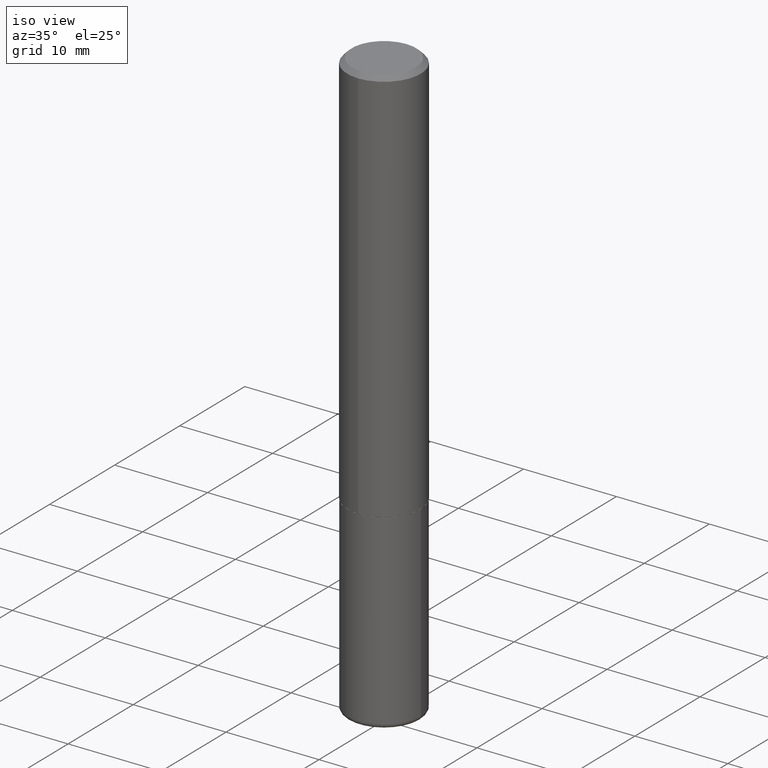
[diagram: clean part render]
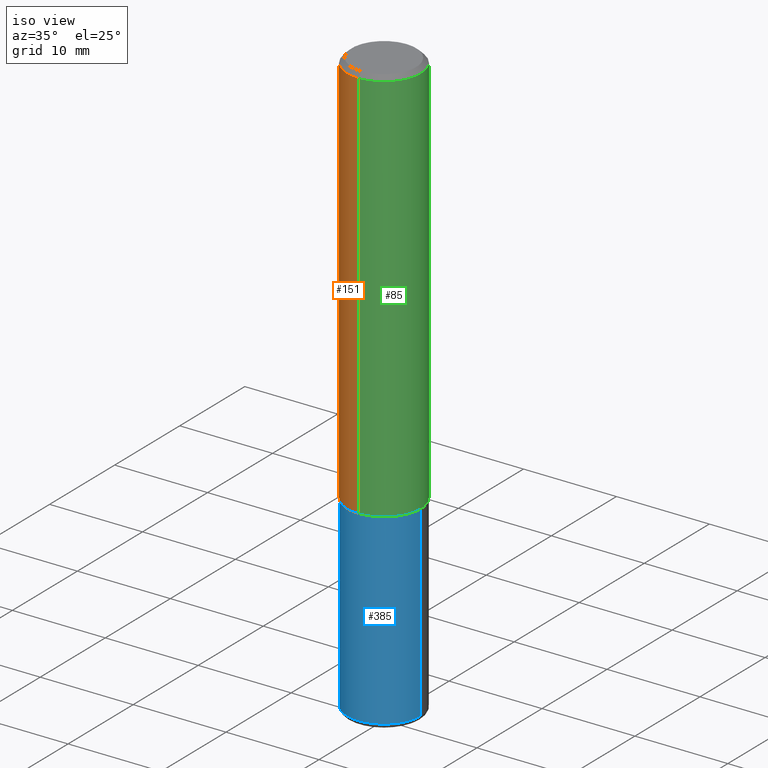
[diagram: same view with three faces highlighted in distinct colors, each labeled with its STEP entity id]
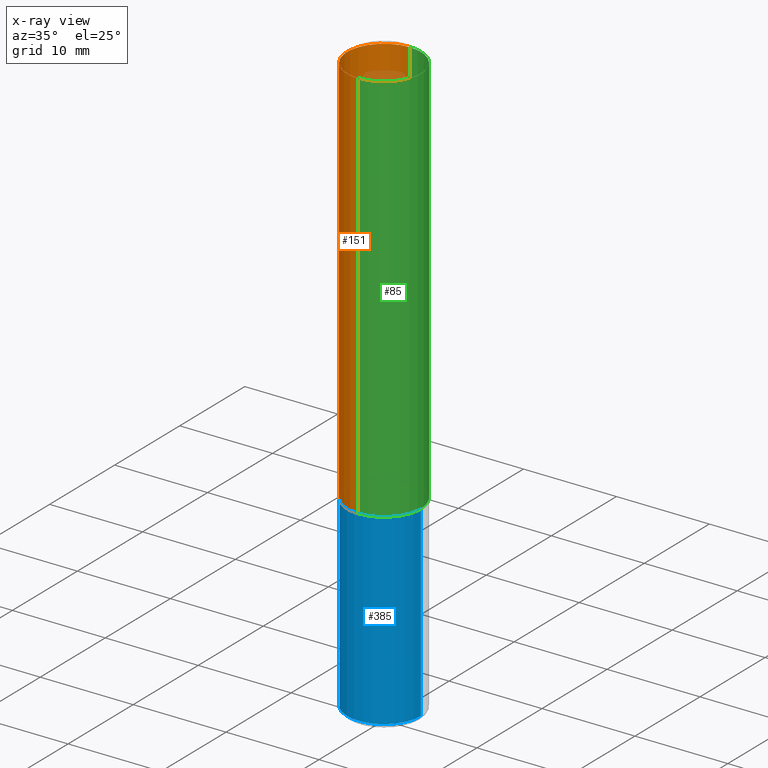
[diagram: x-ray of the same camera — body ghosted, the three highlighted faces saturated]
A machine part, iso view with three faces highlighted in distinct colors.
The next image is the same camera in x-ray (body ghosted, the three faces saturated) — at least one of them is partly hidden behind the body in this view.
Their STEP definitions:

[orange] entity #151 — the highlighted cylindrical surface (partial cylindrical patch) has radius 3.9688 mm, axis along (-0, 0, 1).
#13 = DIRECTION ( 'NONE',  ( -2.445245379879280031E-29, 3.491801298029767650E-15, 1.000000000000000000 ) ) ;
#14 = VERTEX_POINT ( 'NONE', #233 ) ;
#15 = EDGE_CURVE ( 'NONE', #205, #14, #387, .T. ) ;
#40 = CYLINDRICAL_SURFACE ( 'NONE', #208, 0.1562500000000001388 ) ;
#41 = CARTESIAN_POINT ( 'NONE',  ( -1.071952812151801412E-15, -0.1562500000000001110, -0.01999999999999948694 ) ) ;
#42 = EDGE_CURVE ( 'NONE', #14, #221, #47, .T. ) ;
#47 = CIRCLE ( 'NONE', #289, 0.1562500000000000278 ) ;
#53 = AXIS2_PLACEMENT_3D ( 'NONE', #180, #116, #324 ) ;
#57 = CARTESIAN_POINT ( 'NONE',  ( 1.110223024625178431E-15, 0.1562499999999943379, -1.686000000000000831 ) ) ;
#93 = CARTESIAN_POINT ( 'NONE',  ( -1.091087918388439336E-15, -0.1562500000000060785, -1.685999999999999721 ) ) ;
#116 = DIRECTION ( 'NONE',  ( -2.445245379879280031E-29, 3.491801298029767650E-15, 1.000000000000000000 ) ) ;
#117 = ORIENTED_EDGE ( 'NONE', *, *, #42, .F. ) ;
#147 = DIRECTION ( 'NONE',  ( -2.445245379879280031E-29, 3.491801298029767650E-15, 1.000000000000000000 ) ) ;
#151 = ADVANCED_FACE ( 'NONE', ( #184 ), #40, .T. ) ;
#180 = CARTESIAN_POINT ( 'NONE',  ( 4.122683710476466546E-29, -5.887176988478189589E-15, -1.686000000000000165 ) ) ;
#181 = VECTOR ( 'NONE', #394, 39.37007874015748143 ) ;
#184 = FACE_OUTER_BOUND ( 'NONE', #402, .T. ) ;
#205 = VERTEX_POINT ( 'NONE', #57 ) ;
#208 = AXIS2_PLACEMENT_3D ( 'NONE', #285, #13, #252 ) ;
#213 = ORIENTED_EDGE ( 'NONE', *, *, #222, .T. ) ;
#217 = CARTESIAN_POINT ( 'NONE',  ( -1.091087918388479962E-15, -0.1562500000000001388, 5.455939528171517007E-16 ) ) ;
#221 = VERTEX_POINT ( 'NONE', #41 ) ;
#222 = EDGE_CURVE ( 'NONE', #334, #221, #274, .T. ) ;
#233 = CARTESIAN_POINT ( 'NONE',  ( 1.091087918388479765E-15, 0.1562499999999999722, -0.02000000000000057981 ) ) ;
#244 = ORIENTED_EDGE ( 'NONE', *, *, #361, .T. ) ;
#252 = DIRECTION ( 'NONE',  ( -6.982962677686265922E-15, -1.000000000000000000, 3.491801298029767650E-15 ) ) ;
#260 = DIRECTION ( 'NONE',  ( -6.982962677686266711E-15, -1.000000000000000000, 3.496765431890256131E-15 ) ) ;
#264 = VECTOR ( 'NONE', #359, 39.37007874015748143 ) ;
#274 = LINE ( 'NONE', #217, #181 ) ;
#277 = ORIENTED_EDGE ( 'NONE', *, *, #15, .F. ) ;
#285 = CARTESIAN_POINT ( 'NONE',  ( 0.000000000000000000, 0.000000000000000000, 0.000000000000000000 ) ) ;
#289 = AXIS2_PLACEMENT_3D ( 'NONE', #339, #147, #260 ) ;
#324 = DIRECTION ( 'NONE',  ( -6.982962677686265922E-15, -1.000000000000000000, 3.496765431890251792E-15 ) ) ;
#334 = VERTEX_POINT ( 'NONE', #93 ) ;
#339 = CARTESIAN_POINT ( 'NONE',  ( 4.890490759758567699E-31, -6.983602596059547330E-17, -0.02000000000000003511 ) ) ;
#354 = CARTESIAN_POINT ( 'NONE',  ( 1.110223024625157329E-15, 0.1562500000000001388, -5.455939528171517007E-16 ) ) ;
#356 = CIRCLE ( 'NONE', #53, 0.1562500000000002220 ) ;
#359 = DIRECTION ( 'NONE',  ( -2.445245379879280311E-29, 3.491801298029767256E-15, 1.000000000000000000 ) ) ;
#361 = EDGE_CURVE ( 'NONE', #205, #334, #356, .T. ) ;
#387 = LINE ( 'NONE', #354, #264 ) ;
#394 = DIRECTION ( 'NONE',  ( -2.445245379879280311E-29, 3.491801298029767256E-15, 1.000000000000000000 ) ) ;
#402 = EDGE_LOOP ( 'NONE', ( #277, #244, #213, #117 ) ) ;

[blue] entity #385 — the highlighted cylindrical surface (partial cylindrical patch) has radius 3.9688 mm, axis along (-0, 0, 1).
#17 = CIRCLE ( 'NONE', #412, 0.1562500000000000000 ) ;
#19 = VERTEX_POINT ( 'NONE', #76 ) ;
#26 = DIRECTION ( 'NONE',  ( -2.445468806185136597E-29, 3.491481338843145583E-15, 1.000000000000000000 ) ) ;
#56 = CARTESIAN_POINT ( 'NONE',  ( 0.1562500000000000000, -1.091087918388479174E-15, 7.619026212181150377E-30 ) ) ;
#72 = CYLINDRICAL_SURFACE ( 'NONE', #95, 0.1562500000000000000 ) ;
#76 = CARTESIAN_POINT ( 'NONE',  ( 0.1562500000000000000, -6.981216937016868084E-15, -1.687000000000000277 ) ) ;
#86 = ORIENTED_EDGE ( 'NONE', *, *, #172, .T. ) ;
#95 = AXIS2_PLACEMENT_3D ( 'NONE', #104, #145, #245 ) ;
#101 = VERTEX_POINT ( 'NONE', #278 ) ;
#102 = CARTESIAN_POINT ( 'NONE',  ( -0.1562500000000000000, 1.110223024625156540E-15, -7.685836078523291160E-30 ) ) ;
#104 = CARTESIAN_POINT ( 'NONE',  ( 0.000000000000000000, 0.000000000000000000, 0.000000000000000000 ) ) ;
#115 = FACE_OUTER_BOUND ( 'NONE', #227, .T. ) ;
#126 = ORIENTED_EDGE ( 'NONE', *, *, #267, .F. ) ;
#133 = VECTOR ( 'NONE', #409, 39.37007874015748143 ) ;
#134 = AXIS2_PLACEMENT_3D ( 'NONE', #259, #322, #353 ) ;
#143 = ORIENTED_EDGE ( 'NONE', *, *, #270, .F. ) ;
#145 = DIRECTION ( 'NONE',  ( -2.445468806185136597E-29, 3.491481338843145583E-15, 1.000000000000000000 ) ) ;
#162 = EDGE_CURVE ( 'NONE', #250, #19, #344, .T. ) ;
#172 = EDGE_CURVE ( 'NONE', #223, #250, #17, .T. ) ;
#211 = VECTOR ( 'NONE', #413, 39.37007874015748143 ) ;
#223 = VERTEX_POINT ( 'NONE', #333 ) ;
#227 = EDGE_LOOP ( 'NONE', ( #126, #86, #355, #143 ) ) ;
#243 = CIRCLE ( 'NONE', #134, 0.1562500000000000000 ) ;
#245 = DIRECTION ( 'NONE',  ( 1.000000000000000000, -6.982962677686266711E-15, 4.876176775795936353E-29 ) ) ;
#250 = VERTEX_POINT ( 'NONE', #345 ) ;
#259 = CARTESIAN_POINT ( 'NONE',  ( 4.125505876034326327E-29, -5.890129018628388122E-15, -1.687000000000000277 ) ) ;
#267 = EDGE_CURVE ( 'NONE', #223, #101, #391, .T. ) ;
#270 = EDGE_CURVE ( 'NONE', #101, #19, #243, .T. ) ;
#278 = CARTESIAN_POINT ( 'NONE',  ( -0.1562500000000000000, -6.164278344854539131E-15, -1.687000000000000277 ) ) ;
#320 = CARTESIAN_POINT ( 'NONE',  ( 6.064762639339139522E-29, -8.658873720331001644E-15, -2.480000000000000426 ) ) ;
#322 = DIRECTION ( 'NONE',  ( -2.445468806185136597E-29, 3.491481338843145583E-15, 1.000000000000000000 ) ) ;
#333 = CARTESIAN_POINT ( 'NONE',  ( -0.1562499999999999445, -7.548650695705845104E-15, -2.480000000000000426 ) ) ;
#344 = LINE ( 'NONE', #56, #211 ) ;
#345 = CARTESIAN_POINT ( 'NONE',  ( 0.1562499999999999445, -9.749961638719480029E-15, -2.480000000000000426 ) ) ;
#353 = DIRECTION ( 'NONE',  ( 1.000000000000000000, -6.982962677686269077E-15, 0.000000000000000000 ) ) ;
#355 = ORIENTED_EDGE ( 'NONE', *, *, #162, .T. ) ;
#385 = ADVANCED_FACE ( 'NONE', ( #115 ), #72, .T. ) ;
#391 = LINE ( 'NONE', #102, #133 ) ;
#409 = DIRECTION ( 'NONE',  ( -2.445468806185136877E-29, 3.491481338843145188E-15, 1.000000000000000000 ) ) ;
#412 = AXIS2_PLACEMENT_3D ( 'NONE', #320, #26, #415 ) ;
#413 = DIRECTION ( 'NONE',  ( -2.445468806185136877E-29, 3.491481338843145188E-15, 1.000000000000000000 ) ) ;
#415 = DIRECTION ( 'NONE',  ( 1.000000000000000000, -6.982962677686262766E-15, 0.000000000000000000 ) ) ;

[green] entity #85 — the highlighted cylindrical surface (partial cylindrical patch) has radius 3.9688 mm, axis along (-0, 0, 1).
#2 = DIRECTION ( 'NONE',  ( -2.445245379879280031E-29, 3.491801298029767650E-15, 1.000000000000000000 ) ) ;
#5 = EDGE_CURVE ( 'NONE', #334, #205, #336, .T. ) ;
#14 = VERTEX_POINT ( 'NONE', #233 ) ;
#15 = EDGE_CURVE ( 'NONE', #205, #14, #387, .T. ) ;
#16 = FACE_OUTER_BOUND ( 'NONE', #206, .T. ) ;
#21 = ORIENTED_EDGE ( 'NONE', *, *, #15, .T. ) ;
#29 = EDGE_CURVE ( 'NONE', #221, #14, #71, .T. ) ;
#37 = CARTESIAN_POINT ( 'NONE',  ( 4.890490759758567699E-31, -6.983602596059547330E-17, -0.02000000000000003511 ) ) ;
#41 = CARTESIAN_POINT ( 'NONE',  ( -1.071952812151801412E-15, -0.1562500000000001110, -0.01999999999999948694 ) ) ;
#48 = ORIENTED_EDGE ( 'NONE', *, *, #222, .F. ) ;
#57 = CARTESIAN_POINT ( 'NONE',  ( 1.110223024625178431E-15, 0.1562499999999943379, -1.686000000000000831 ) ) ;
#71 = CIRCLE ( 'NONE', #183, 0.1562500000000000278 ) ;
#85 = ADVANCED_FACE ( 'NONE', ( #16 ), #378, .T. ) ;
#93 = CARTESIAN_POINT ( 'NONE',  ( -1.091087918388439336E-15, -0.1562500000000060785, -1.685999999999999721 ) ) ;
#142 = DIRECTION ( 'NONE',  ( -6.982962677686265922E-15, -1.000000000000000000, 3.496765431890251792E-15 ) ) ;
#181 = VECTOR ( 'NONE', #394, 39.37007874015748143 ) ;
#183 = AXIS2_PLACEMENT_3D ( 'NONE', #37, #218, #347 ) ;
#190 = CARTESIAN_POINT ( 'NONE',  ( 0.000000000000000000, 0.000000000000000000, 0.000000000000000000 ) ) ;
#205 = VERTEX_POINT ( 'NONE', #57 ) ;
#206 = EDGE_LOOP ( 'NONE', ( #330, #21, #220, #48 ) ) ;
#217 = CARTESIAN_POINT ( 'NONE',  ( -1.091087918388479962E-15, -0.1562500000000001388, 5.455939528171517007E-16 ) ) ;
#218 = DIRECTION ( 'NONE',  ( -2.445245379879280031E-29, 3.491801298029767650E-15, 1.000000000000000000 ) ) ;
#220 = ORIENTED_EDGE ( 'NONE', *, *, #29, .F. ) ;
#221 = VERTEX_POINT ( 'NONE', #41 ) ;
#222 = EDGE_CURVE ( 'NONE', #334, #221, #274, .T. ) ;
#233 = CARTESIAN_POINT ( 'NONE',  ( 1.091087918388479765E-15, 0.1562499999999999722, -0.02000000000000057981 ) ) ;
#264 = VECTOR ( 'NONE', #359, 39.37007874015748143 ) ;
#274 = LINE ( 'NONE', #217, #181 ) ;
#303 = DIRECTION ( 'NONE',  ( -6.982962677686265922E-15, -1.000000000000000000, 3.491801298029767650E-15 ) ) ;
#305 = CARTESIAN_POINT ( 'NONE',  ( 4.122683710476466546E-29, -5.887176988478189589E-15, -1.686000000000000165 ) ) ;
#318 = DIRECTION ( 'NONE',  ( -2.445245379879280031E-29, 3.491801298029767650E-15, 1.000000000000000000 ) ) ;
#330 = ORIENTED_EDGE ( 'NONE', *, *, #5, .T. ) ;
#334 = VERTEX_POINT ( 'NONE', #93 ) ;
#336 = CIRCLE ( 'NONE', #357, 0.1562500000000002220 ) ;
#347 = DIRECTION ( 'NONE',  ( -6.982962677686266711E-15, -1.000000000000000000, 3.496765431890256131E-15 ) ) ;
#354 = CARTESIAN_POINT ( 'NONE',  ( 1.110223024625157329E-15, 0.1562500000000001388, -5.455939528171517007E-16 ) ) ;
#357 = AXIS2_PLACEMENT_3D ( 'NONE', #305, #2, #142 ) ;
#359 = DIRECTION ( 'NONE',  ( -2.445245379879280311E-29, 3.491801298029767256E-15, 1.000000000000000000 ) ) ;
#378 = CYLINDRICAL_SURFACE ( 'NONE', #382, 0.1562500000000001388 ) ;
#382 = AXIS2_PLACEMENT_3D ( 'NONE', #190, #318, #303 ) ;
#387 = LINE ( 'NONE', #354, #264 ) ;
#394 = DIRECTION ( 'NONE',  ( -2.445245379879280311E-29, 3.491801298029767256E-15, 1.000000000000000000 ) ) ;